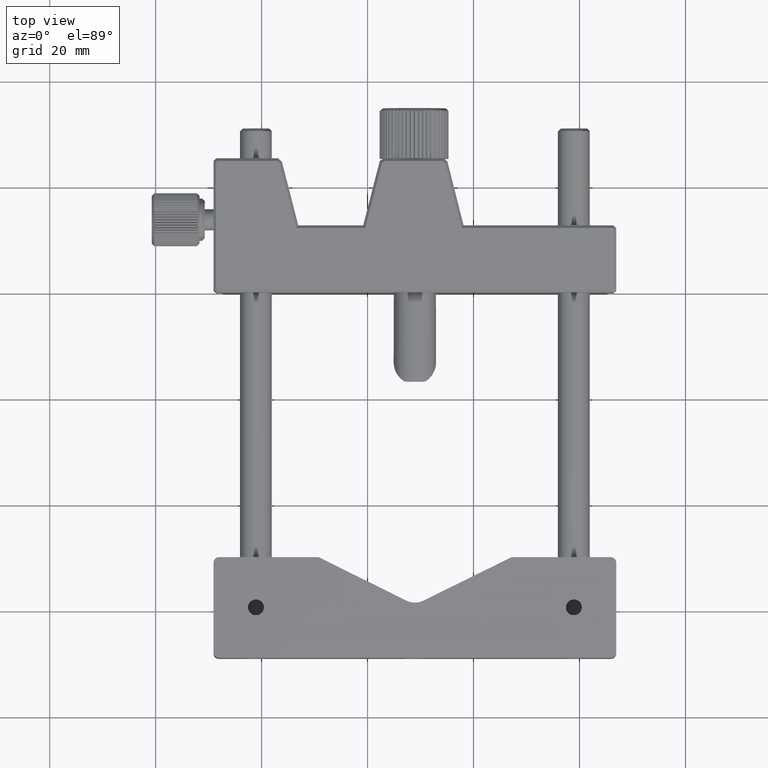
[diagram: clean part render]
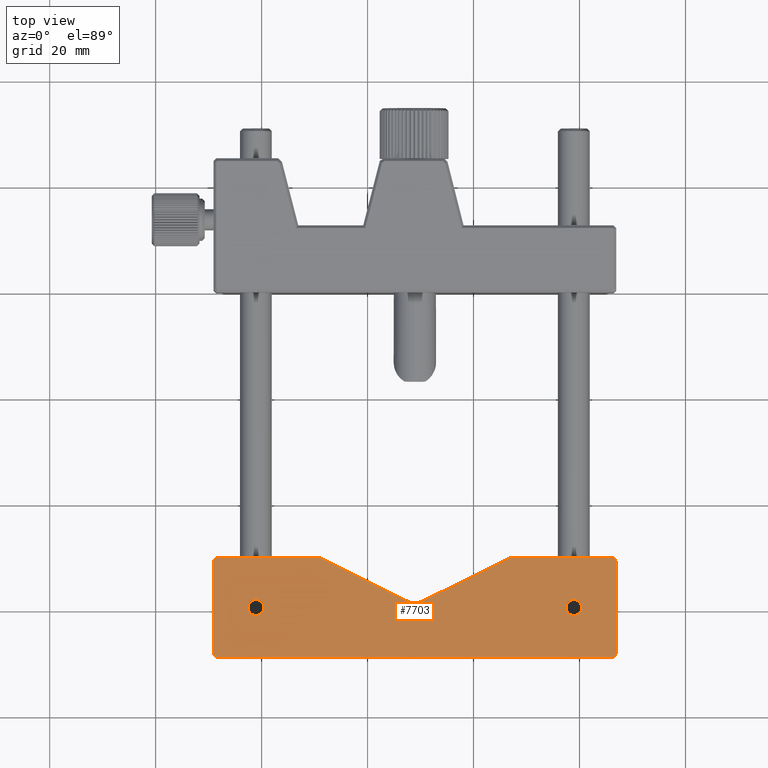
[diagram: same view with one face highlighted and labeled with its STEP entity id]
A machine part, top view. The second image highlights one B-rep face of the part: STEP entity #7703.
In plain terms, the highlighted planar face has unit normal (0, 0, 1).
Its self-contained STEP definition (entity closure, byte-faithful):
#2 = CIRCLE ( 'NONE', #9127, 1.500000000000001332 ) ;
#91 = ORIENTED_EDGE ( 'NONE', *, *, #198, .T. ) ;
#198 = EDGE_CURVE ( 'NONE', #14393, #9713, #14835, .T. ) ;
#245 = CARTESIAN_POINT ( 'NONE',  ( -63.33676122642619077, -6.511135224870460370, 6.349999999999999645 ) ) ;
#267 = CARTESIAN_POINT ( 'NONE',  ( -56.33676122642620498, -15.01113522487039909, 6.349999999999999645 ) ) ;
#395 = CARTESIAN_POINT ( 'NONE',  ( -64.33676122642619077, -6.511135224870471028, 6.349999999999999645 ) ) ;
#427 = DIRECTION ( 'NONE',  ( 0.000000000000000000, 0.000000000000000000, -1.000000000000000000 ) ) ;
#583 = EDGE_CURVE ( 'NONE', #11677, #6734, #4685, .T. ) ;
#708 = AXIS2_PLACEMENT_3D ( 'NONE', #245, #6442, #14005 ) ;
#1068 = EDGE_CURVE ( 'NONE', #3852, #15118, #15136, .T. ) ;
#1290 = LINE ( 'NONE', #11481, #6387 ) ;
#1419 = EDGE_CURVE ( 'NONE', #3650, #14301, #14028, .T. ) ;
#1442 = CARTESIAN_POINT ( 'NONE',  ( 3.663238773573780360, -15.01113522487039909, 6.349999999999999645 ) ) ;
#1457 = EDGE_CURVE ( 'NONE', #3046, #15441, #2, .T. ) ;
#1574 = CARTESIAN_POINT ( 'NONE',  ( 10.66323877357379857, -5.511135224870460370, 6.349999999999999645 ) ) ;
#1683 = EDGE_CURVE ( 'NONE', #3852, #9288, #14924, .T. ) ;
#1699 = EDGE_CURVE ( 'NONE', #14301, #1711, #2356, .T. ) ;
#1711 = VERTEX_POINT ( 'NONE', #7106 ) ;
#1729 = EDGE_CURVE ( 'NONE', #7079, #14393, #8498, .T. ) ;
#1828 = CARTESIAN_POINT ( 'NONE',  ( 10.66323877357379857, -23.51113522487040086, 6.349999999999999645 ) ) ;
#2182 = ORIENTED_EDGE ( 'NONE', *, *, #4664, .T. ) ;
#2356 = CIRCLE ( 'NONE', #12766, 1.000000000000000888 ) ;
#2383 = CIRCLE ( 'NONE', #11498, 1.500000000000001332 ) ;
#2437 = EDGE_CURVE ( 'NONE', #6734, #11677, #4466, .T. ) ;
#2628 = EDGE_CURVE ( 'NONE', #15441, #3046, #2383, .T. ) ;
#2906 = DIRECTION ( 'NONE',  ( 0.000000000000000000, 0.000000000000000000, 1.000000000000000000 ) ) ;
#3046 = VERTEX_POINT ( 'NONE', #11503 ) ;
#3138 = ORIENTED_EDGE ( 'NONE', *, *, #1419, .F. ) ;
#3152 = CARTESIAN_POINT ( 'NONE',  ( -8.088472653527858824, -5.511135224870471028, 6.349999999999999645 ) ) ;
#3424 = CARTESIAN_POINT ( 'NONE',  ( -63.33676122642619077, -6.511135224870460370, 6.349999999999999645 ) ) ;
#3438 = DIRECTION ( 'NONE',  ( -0.8960023586890236702, 0.4440492914347528575, 0.000000000000000000 ) ) ;
#3502 = PLANE ( 'NONE',  #11342 ) ;
#3539 = DIRECTION ( 'NONE',  ( -1.000000000000000000, -5.782411586589357244E-15, 0.000000000000000000 ) ) ;
#3650 = VERTEX_POINT ( 'NONE', #5842 ) ;
#3663 = CARTESIAN_POINT ( 'NONE',  ( -44.48504979932449999, -5.511135224870460370, 6.349999999999999645 ) ) ;
#3852 = VERTEX_POINT ( 'NONE', #1574 ) ;
#3869 = CARTESIAN_POINT ( 'NONE',  ( -63.33676122642619077, -5.511135224870460370, 6.349999999999999645 ) ) ;
#3972 = DIRECTION ( 'NONE',  ( 0.000000000000000000, 0.000000000000000000, -1.000000000000000000 ) ) ;
#4013 = DIRECTION ( 'NONE',  ( -1.000000000000000000, -6.938893903907222067E-15, 0.000000000000000000 ) ) ;
#4296 = CARTESIAN_POINT ( 'NONE',  ( 2.163238773573780360, -15.01113522487039909, 6.349999999999999645 ) ) ;
#4466 = CIRCLE ( 'NONE', #11222, 1.500000000000000000 ) ;
#4658 = DIRECTION ( 'NONE',  ( 0.000000000000000000, 0.000000000000000000, -1.000000000000000000 ) ) ;
#4664 = EDGE_CURVE ( 'NONE', #6487, #1711, #7821, .T. ) ;
#4685 = CIRCLE ( 'NONE', #5242, 1.500000000000000000 ) ;
#4883 = CARTESIAN_POINT ( 'NONE',  ( -64.33676122642619077, -6.511135224870471028, 6.349999999999999645 ) ) ;
#5036 = CARTESIAN_POINT ( 'NONE',  ( -57.83676122642620498, -15.01113522487039909, 6.349999999999999645 ) ) ;
#5091 = DIRECTION ( 'NONE',  ( 1.000000000000000000, -1.127570259384925558E-14, 0.000000000000000000 ) ) ;
#5218 = VERTEX_POINT ( 'NONE', #15621 ) ;
#5242 = AXIS2_PLACEMENT_3D ( 'NONE', #1442, #3972, #5270 ) ;
#5270 = DIRECTION ( 'NONE',  ( -1.000000000000000000, -5.782411586589357244E-15, 0.000000000000000000 ) ) ;
#5355 = ORIENTED_EDGE ( 'NONE', *, *, #14128, .F. ) ;
#5698 = CARTESIAN_POINT ( 'NONE',  ( -63.33676122642619077, -24.51113522487050034, 6.349999999999999645 ) ) ;
#5842 = CARTESIAN_POINT ( 'NONE',  ( 10.66323877357379857, -24.51113522487050034, 6.349999999999999645 ) ) ;
#6001 = EDGE_LOOP ( 'NONE', ( #12565, #15176 ) ) ;
#6129 = DIRECTION ( 'NONE',  ( -1.000000000000000000, -1.387778780781444413E-14, 0.000000000000000000 ) ) ;
#6272 = VECTOR ( 'NONE', #3438, 1000.000000000000114 ) ;
#6387 = VECTOR ( 'NONE', #9041, 1000.000000000000000 ) ;
#6442 = DIRECTION ( 'NONE',  ( 0.000000000000000000, 0.000000000000000000, -1.000000000000000000 ) ) ;
#6474 = DIRECTION ( 'NONE',  ( 0.000000000000000000, 0.000000000000000000, -1.000000000000000000 ) ) ;
#6487 = VERTEX_POINT ( 'NONE', #4883 ) ;
#6553 = DIRECTION ( 'NONE',  ( -1.000000000000000000, -6.938893903907222067E-15, 0.000000000000000000 ) ) ;
#6633 = CARTESIAN_POINT ( 'NONE',  ( -27.88667304334610009, -13.73711517456989917, 6.349999999999999645 ) ) ;
#6711 = EDGE_CURVE ( 'NONE', #5218, #15118, #1290, .T. ) ;
#6734 = VERTEX_POINT ( 'NONE', #4296 ) ;
#6962 = AXIS2_PLACEMENT_3D ( 'NONE', #11227, #7810, #8871 ) ;
#7079 = VERTEX_POINT ( 'NONE', #6633 ) ;
#7084 = CARTESIAN_POINT ( 'NONE',  ( -24.78517655452879964, -13.74049993940760039, 6.349999999999999645 ) ) ;
#7093 = FACE_OUTER_BOUND ( 'NONE', #11574, .T. ) ;
#7106 = CARTESIAN_POINT ( 'NONE',  ( -64.33676122642619077, -23.51113522487050389, 6.349999999999999645 ) ) ;
#7262 = FACE_BOUND ( 'NONE', #6001, .T. ) ;
#7634 = ORIENTED_EDGE ( 'NONE', *, *, #1068, .F. ) ;
#7703 = ADVANCED_FACE ( 'NONE', ( #7262, #13431, #7093 ), #3502, .T. ) ;
#7724 = CIRCLE ( 'NONE', #11623, 0.9999999999999991118 ) ;
#7810 = DIRECTION ( 'NONE',  ( 0.000000000000000000, 0.000000000000000000, -1.000000000000000000 ) ) ;
#7821 = LINE ( 'NONE', #395, #11267 ) ;
#8130 = DIRECTION ( 'NONE',  ( -0.8969694343569512007, -0.4420925625130681103, 0.000000000000000000 ) ) ;
#8333 = CARTESIAN_POINT ( 'NONE',  ( 10.66323877357379857, -5.511135224870460370, 6.349999999999999645 ) ) ;
#8353 = ORIENTED_EDGE ( 'NONE', *, *, #6711, .T. ) ;
#8407 = EDGE_CURVE ( 'NONE', #3650, #5218, #7724, .T. ) ;
#8482 = DIRECTION ( 'NONE',  ( 0.000000000000000000, 0.000000000000000000, 1.000000000000000000 ) ) ;
#8498 = LINE ( 'NONE', #14593, #6272 ) ;
#8604 = CARTESIAN_POINT ( 'NONE',  ( 3.663238773573780360, -15.01113522487039909, 6.349999999999999645 ) ) ;
#8660 = ORIENTED_EDGE ( 'NONE', *, *, #583, .T. ) ;
#8688 = DIRECTION ( 'NONE',  ( 0.000000000000000000, 0.000000000000000000, -1.000000000000000000 ) ) ;
#8785 = CIRCLE ( 'NONE', #6962, 3.499999999999999556 ) ;
#8871 = DIRECTION ( 'NONE',  ( -0.4440492914347463627, -0.8960023586890270009, 0.000000000000000000 ) ) ;
#9041 = DIRECTION ( 'NONE',  ( 0.000000000000000000, 1.000000000000000000, 0.000000000000000000 ) ) ;
#9087 = CARTESIAN_POINT ( 'NONE',  ( -56.33676122642620498, -15.01113522487039909, 6.349999999999999645 ) ) ;
#9127 = AXIS2_PLACEMENT_3D ( 'NONE', #267, #427, #4013 ) ;
#9158 = CARTESIAN_POINT ( 'NONE',  ( 10.66323877357379857, -24.51113522487050034, 6.349999999999999645 ) ) ;
#9288 = VERTEX_POINT ( 'NONE', #13657 ) ;
#9318 = VECTOR ( 'NONE', #8130, 1000.000000000000000 ) ;
#9426 = DIRECTION ( 'NONE',  ( 1.000000000000000000, -3.469446951953617344E-15, 0.000000000000000000 ) ) ;
#9560 = ORIENTED_EDGE ( 'NONE', *, *, #1729, .T. ) ;
#9713 = VERTEX_POINT ( 'NONE', #3869 ) ;
#10603 = CIRCLE ( 'NONE', #708, 1.000000000000000000 ) ;
#10702 = VECTOR ( 'NONE', #13597, 1000.000000000000000 ) ;
#10936 = DIRECTION ( 'NONE',  ( -1.000000000000000000, -5.920649050841110169E-16, 0.000000000000000000 ) ) ;
#11222 = AXIS2_PLACEMENT_3D ( 'NONE', #8604, #12338, #3539 ) ;
#11227 = CARTESIAN_POINT ( 'NONE',  ( -26.33250052332460101, -10.60110691915830117, 6.349999999999999645 ) ) ;
#11267 = VECTOR ( 'NONE', #12779, 1000.000000000000000 ) ;
#11342 = AXIS2_PLACEMENT_3D ( 'NONE', #3424, #8482, #12302 ) ;
#11481 = CARTESIAN_POINT ( 'NONE',  ( 11.66323877357380034, -23.51113522487050389, 6.349999999999999645 ) ) ;
#11498 = AXIS2_PLACEMENT_3D ( 'NONE', #9087, #6474, #6553 ) ;
#11503 = CARTESIAN_POINT ( 'NONE',  ( -54.83676122642620498, -15.01113522487039909, 6.349999999999999645 ) ) ;
#11574 = EDGE_LOOP ( 'NONE', ( #14932, #15423, #9560, #91, #5355, #2182, #14324, #3138, #13804, #8353, #7634, #12297 ) ) ;
#11623 = AXIS2_PLACEMENT_3D ( 'NONE', #1828, #2906, #9426 ) ;
#11677 = VERTEX_POINT ( 'NONE', #12230 ) ;
#11712 = LINE ( 'NONE', #3152, #9318 ) ;
#11745 = ORIENTED_EDGE ( 'NONE', *, *, #2437, .T. ) ;
#12230 = CARTESIAN_POINT ( 'NONE',  ( 5.163238773573779916, -15.01113522487039909, 6.349999999999999645 ) ) ;
#12295 = EDGE_LOOP ( 'NONE', ( #8660, #11745 ) ) ;
#12297 = ORIENTED_EDGE ( 'NONE', *, *, #1683, .T. ) ;
#12302 = DIRECTION ( 'NONE',  ( 1.000000000000000000, 0.000000000000000000, 0.000000000000000000 ) ) ;
#12313 = CARTESIAN_POINT ( 'NONE',  ( 11.66323877357380034, -6.511135224870471028, 6.349999999999999645 ) ) ;
#12338 = DIRECTION ( 'NONE',  ( 0.000000000000000000, 0.000000000000000000, -1.000000000000000000 ) ) ;
#12507 = VECTOR ( 'NONE', #12656, 1000.000000000000000 ) ;
#12511 = CARTESIAN_POINT ( 'NONE',  ( 10.66323877357379857, -6.511135224870460370, 6.349999999999999645 ) ) ;
#12518 = VECTOR ( 'NONE', #10936, 1000.000000000000000 ) ;
#12565 = ORIENTED_EDGE ( 'NONE', *, *, #1457, .T. ) ;
#12656 = DIRECTION ( 'NONE',  ( -1.000000000000000000, 0.000000000000000000, 0.000000000000000000 ) ) ;
#12766 = AXIS2_PLACEMENT_3D ( 'NONE', #14679, #4658, #6129 ) ;
#12779 = DIRECTION ( 'NONE',  ( 0.000000000000000000, -1.000000000000000000, 0.000000000000000000 ) ) ;
#13431 = FACE_BOUND ( 'NONE', #12295, .T. ) ;
#13597 = DIRECTION ( 'NONE',  ( -1.000000000000000000, 0.000000000000000000, 0.000000000000000000 ) ) ;
#13657 = CARTESIAN_POINT ( 'NONE',  ( -8.088472653527858824, -5.511135224870471028, 6.349999999999999645 ) ) ;
#13804 = ORIENTED_EDGE ( 'NONE', *, *, #8407, .T. ) ;
#14005 = DIRECTION ( 'NONE',  ( 0.000000000000000000, 1.000000000000000000, 0.000000000000000000 ) ) ;
#14028 = LINE ( 'NONE', #9158, #12507 ) ;
#14128 = EDGE_CURVE ( 'NONE', #6487, #9713, #10603, .T. ) ;
#14301 = VERTEX_POINT ( 'NONE', #5698 ) ;
#14324 = ORIENTED_EDGE ( 'NONE', *, *, #1699, .F. ) ;
#14393 = VERTEX_POINT ( 'NONE', #14566 ) ;
#14486 = EDGE_CURVE ( 'NONE', #15260, #7079, #8785, .T. ) ;
#14566 = CARTESIAN_POINT ( 'NONE',  ( -44.48504979932449999, -5.511135224870460370, 6.349999999999999645 ) ) ;
#14593 = CARTESIAN_POINT ( 'NONE',  ( -27.88667304334610009, -13.73711517456989917, 6.349999999999999645 ) ) ;
#14658 = EDGE_CURVE ( 'NONE', #9288, #15260, #11712, .T. ) ;
#14679 = CARTESIAN_POINT ( 'NONE',  ( -63.33676122642619077, -23.51113522487040086, 6.349999999999999645 ) ) ;
#14835 = LINE ( 'NONE', #3663, #10702 ) ;
#14924 = LINE ( 'NONE', #8333, #12518 ) ;
#14932 = ORIENTED_EDGE ( 'NONE', *, *, #14658, .T. ) ;
#15097 = AXIS2_PLACEMENT_3D ( 'NONE', #12511, #8688, #5091 ) ;
#15118 = VERTEX_POINT ( 'NONE', #12313 ) ;
#15136 = CIRCLE ( 'NONE', #15097, 0.9999999999999991118 ) ;
#15176 = ORIENTED_EDGE ( 'NONE', *, *, #2628, .T. ) ;
#15260 = VERTEX_POINT ( 'NONE', #7084 ) ;
#15423 = ORIENTED_EDGE ( 'NONE', *, *, #14486, .T. ) ;
#15441 = VERTEX_POINT ( 'NONE', #5036 ) ;
#15621 = CARTESIAN_POINT ( 'NONE',  ( 11.66323877357380034, -23.51113522487050389, 6.349999999999999645 ) ) ;